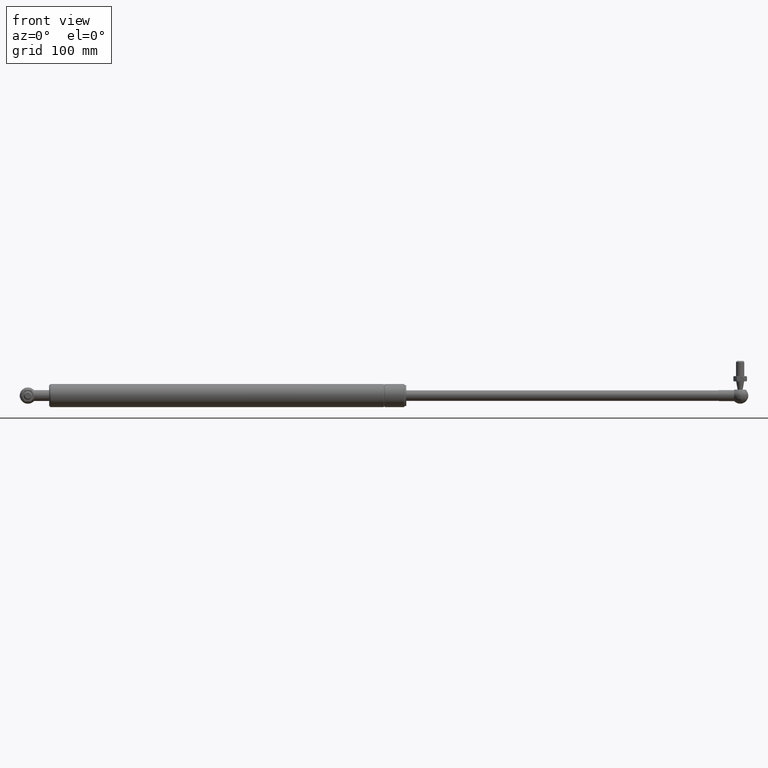
[diagram: clean part render]
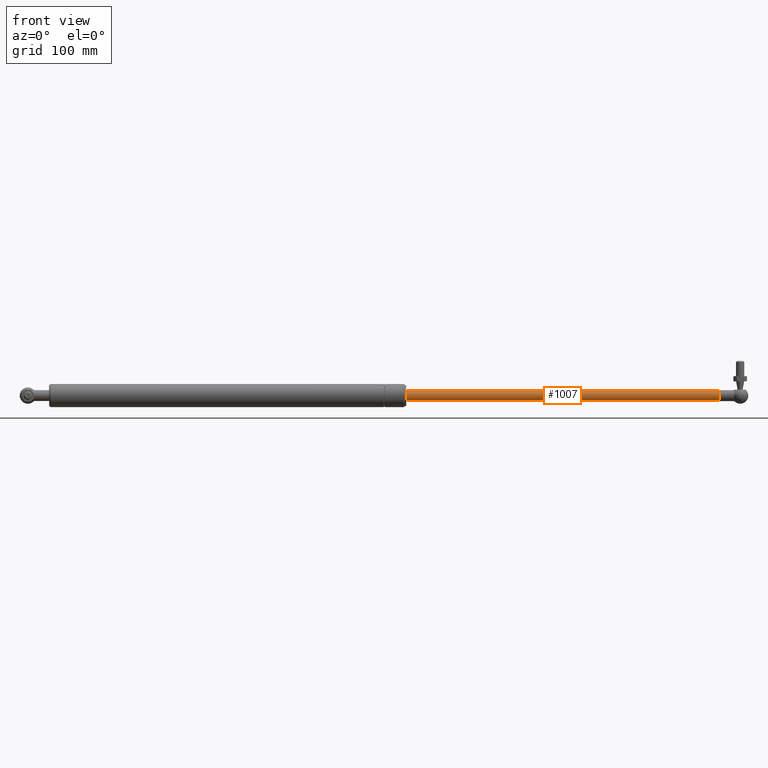
[diagram: same view with one face highlighted and labeled with its STEP entity id]
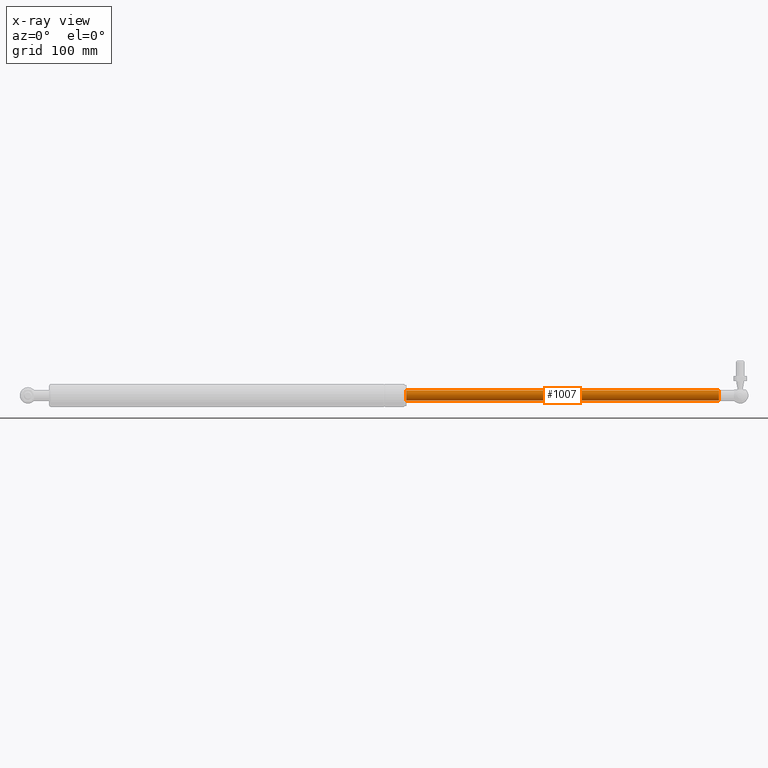
[diagram: x-ray of the same camera — body ghosted, the highlighted face saturated]
A machine part, front view. The second image highlights one B-rep face of the part: STEP entity #1007.
The next image is the same camera in x-ray: the body ghosted, the highlighted face saturated — about 0% of this face is hidden behind the body in this view.
In plain terms, the highlighted cylindrical surface (bore or boss wall) has radius 5 mm, axis along (1, 0, 0).
Its self-contained STEP definition (entity closure, byte-faithful):
#215=CYLINDRICAL_SURFACE('',#1101,5.00000000000002);
#259=FACE_BOUND('',#381,.T.);
#299=FACE_OUTER_BOUND('',#380,.T.);
#380=EDGE_LOOP('',(#760));
#381=EDGE_LOOP('',(#761));
#469=CIRCLE('',#1100,5.);
#470=CIRCLE('',#1102,5.00000000000003);
#519=VERTEX_POINT('',#1478);
#520=VERTEX_POINT('',#1481);
#617=EDGE_CURVE('',#519,#519,#469,.T.);
#618=EDGE_CURVE('',#520,#520,#470,.T.);
#760=ORIENTED_EDGE('',*,*,#618,.F.);
#761=ORIENTED_EDGE('',*,*,#617,.T.);
#1007=ADVANCED_FACE('',(#299,#259),#215,.T.);
#1100=AXIS2_PLACEMENT_3D('',#1479,#1245,#1246);
#1101=AXIS2_PLACEMENT_3D('',#1480,#1247,#1248);
#1102=AXIS2_PLACEMENT_3D('',#1482,#1249,#1250);
#1245=DIRECTION('center_axis',(-1.,0.,0.));
#1246=DIRECTION('ref_axis',(0.,0.,1.));
#1247=DIRECTION('center_axis',(-1.,0.,0.));
#1248=DIRECTION('ref_axis',(0.,0.,1.));
#1249=DIRECTION('center_axis',(-1.,0.,0.));
#1250=DIRECTION('ref_axis',(0.,0.,1.));
#1478=CARTESIAN_POINT('',(298.5,0.,5.));
#1479=CARTESIAN_POINT('Origin',(298.5,0.,0.));
#1480=CARTESIAN_POINT('Origin',(149.25,0.,0.));
#1481=CARTESIAN_POINT('',(7.1959436245814E-32,0.,5.00000000000003));
#1482=CARTESIAN_POINT('Origin',(0.,0.,0.));